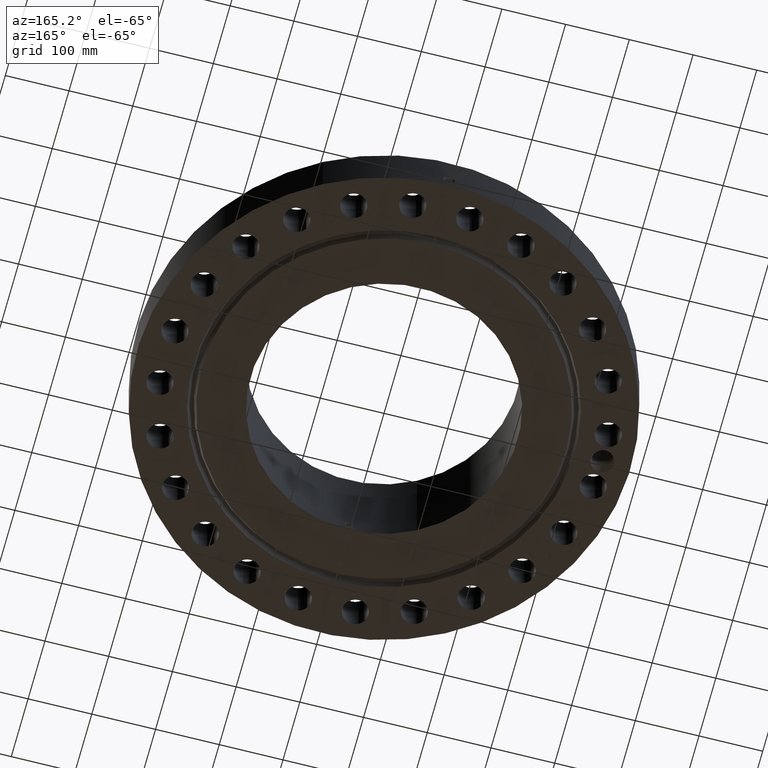
[diagram: clean part render]
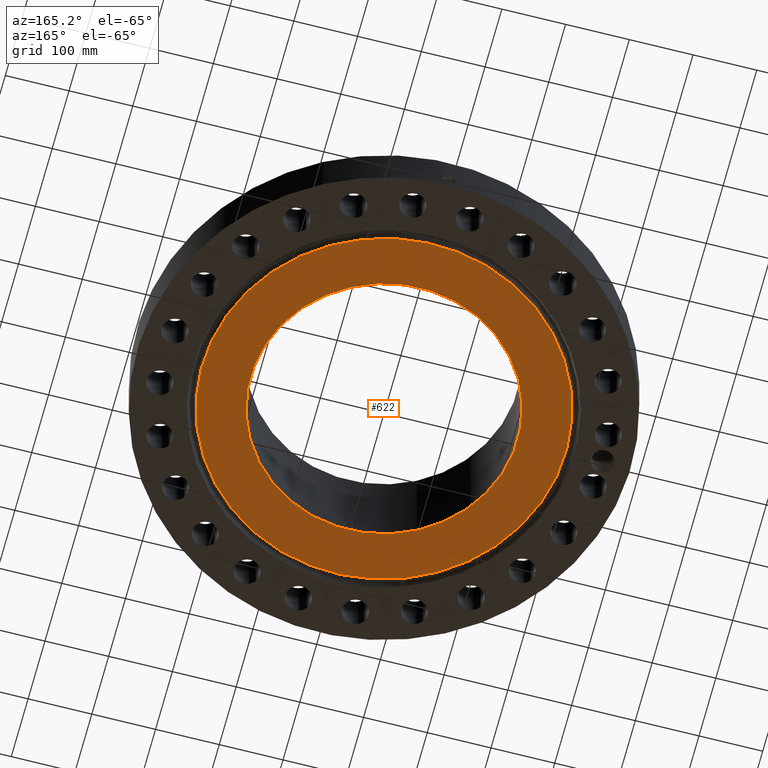
[diagram: same view with one face highlighted and labeled with its STEP entity id]
A machine part, auxiliary view. The second image highlights one B-rep face of the part: STEP entity #622.
In plain terms, the highlighted planar face has unit normal (0, 0, -1).
Its self-contained STEP definition (entity closure, byte-faithful):
#252=AXIS2_PLACEMENT_3D('Circle Axis2P3D',#250,#251,$) ;
#543=AXIS2_PLACEMENT_3D('Circle Axis2P3D',#541,#542,$) ;
#598=AXIS2_PLACEMENT_3D('Plane Axis2P3D',#595,#596,#597) ;
#602=AXIS2_PLACEMENT_3D('Circle Axis2P3D',#600,#601,$) ;
#611=AXIS2_PLACEMENT_3D('Circle Axis2P3D',#609,#610,$) ;
#247=CARTESIAN_POINT('Vertex',(3.9552606935,7.24005613562,-7.04947911069E-014)) ;
#250=CARTESIAN_POINT('Axis2P3D Location',(0.,0.,-7.04947911069E-014)) ;
#254=CARTESIAN_POINT('Vertex',(-3.9552606935,-7.24005613562,-7.04947911069E-014)) ;
#541=CARTESIAN_POINT('Axis2P3D Location',(0.,0.,-7.04947911069E-014)) ;
#595=CARTESIAN_POINT('Axis2P3D Location',(0.,8.25000000003,0.)) ;
#600=CARTESIAN_POINT('Axis2P3D Location',(4.47585975282E-015,0.,0.)) ;
#604=CARTESIAN_POINT('Vertex',(-5.38610621347,9.8592012916,3.40934629609E-016)) ;
#606=CARTESIAN_POINT('Vertex',(5.38610621347,-9.8592012916,0.)) ;
#609=CARTESIAN_POINT('Axis2P3D Location',(-1.1189649382E-015,0.,0.)) ;
#251=DIRECTION('Axis2P3D Direction',(0.,0.,-0.0393700787402)) ;
#542=DIRECTION('Axis2P3D Direction',(0.,0.,-0.0393700787402)) ;
#596=DIRECTION('Axis2P3D Direction',(0.,0.,-0.0393700787402)) ;
#597=DIRECTION('Axis2P3D XDirection',(0.0393700787402,0.,0.)) ;
#601=DIRECTION('Axis2P3D Direction',(0.,0.,-0.0393700787402)) ;
#610=DIRECTION('Axis2P3D Direction',(0.,0.,-0.0393700787402)) ;
#615=ORIENTED_EDGE('',*,*,#608,.T.) ;
#616=ORIENTED_EDGE('',*,*,#613,.T.) ;
#619=ORIENTED_EDGE('',*,*,#256,.F.) ;
#620=ORIENTED_EDGE('',*,*,#545,.F.) ;
#621=FACE_BOUND('',#618,.T.) ;
#622=ADVANCED_FACE('PartBody',(#617,#621),#599,.T.) ;
#253=CIRCLE('generated circle',#252,8.25000000003) ;
#544=CIRCLE('generated circle',#543,8.25000000003) ;
#603=CIRCLE('generated circle',#602,11.2345) ;
#612=CIRCLE('generated circle',#611,11.2345) ;
#256=EDGE_CURVE('',#248,#255,#253,.T.) ;
#545=EDGE_CURVE('',#255,#248,#544,.T.) ;
#608=EDGE_CURVE('',#605,#607,#603,.T.) ;
#613=EDGE_CURVE('',#607,#605,#612,.T.) ;
#614=EDGE_LOOP('',(#615,#616)) ;
#618=EDGE_LOOP('',(#619,#620)) ;
#617=FACE_OUTER_BOUND('',#614,.T.) ;
#599=PLANE('',#598) ;
#248=VERTEX_POINT('',#247) ;
#255=VERTEX_POINT('',#254) ;
#605=VERTEX_POINT('',#604) ;
#607=VERTEX_POINT('',#606) ;